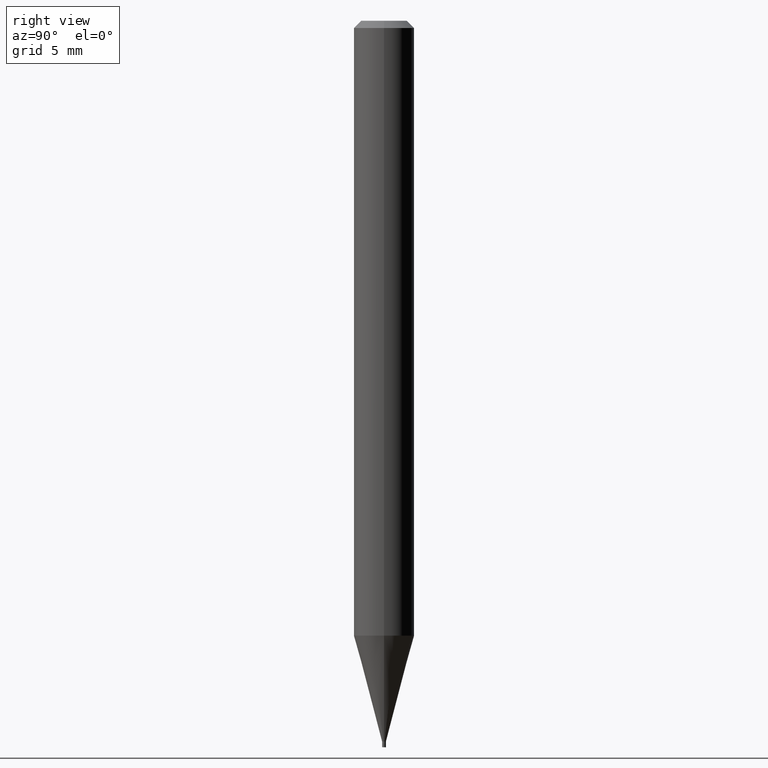
[diagram: clean part render]
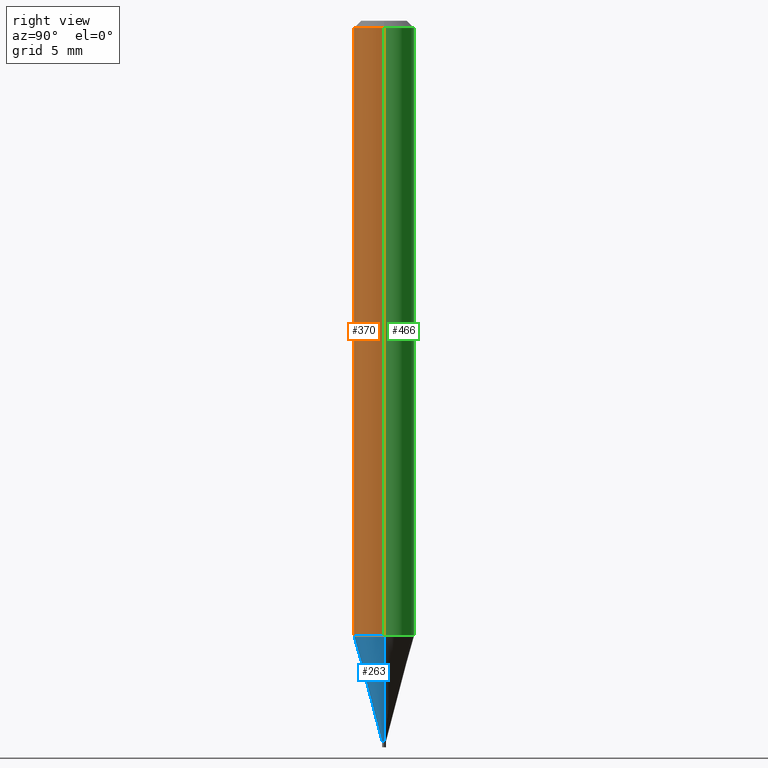
[diagram: same view with three faces highlighted in distinct colors, each labeled with its STEP entity id]
A machine part, right view with three faces highlighted in distinct colors.
Their STEP definitions:

[orange] entity #370 — the highlighted cylindrical surface (edge-blend (fillet) strip) has radius 1.5875 mm, axis along (-0, 0, 1).
#5 = EDGE_CURVE ( 'NONE', #118, #435, #395, .T. ) ;
#9 = AXIS2_PLACEMENT_3D ( 'NONE', #61, #101, #213 ) ;
#10 = DIRECTION ( 'NONE',  ( 1.000000000000000000, -6.982962677686262766E-15, 0.000000000000000000 ) ) ;
#24 = CARTESIAN_POINT ( 'NONE',  ( -0.06250000000000000000, -1.798620233096004515E-15, -0.01499999999999999944 ) ) ;
#45 = CARTESIAN_POINT ( 'NONE',  ( 3.104950674372529160E-29, -4.433046665809486788E-15, -1.269675027757220187 ) ) ;
#48 = ORIENTED_EDGE ( 'NONE', *, *, #324, .T. ) ;
#56 = CARTESIAN_POINT ( 'NONE',  ( -0.06249999999999997918, -3.988957455959424172E-15, -1.269675027757220187 ) ) ;
#61 = CARTESIAN_POINT ( 'NONE',  ( 3.668203209277705088E-31, -5.237222008264718399E-17, -0.01499999999999999944 ) ) ;
#74 = ORIENTED_EDGE ( 'NONE', *, *, #348, .F. ) ;
#97 = LINE ( 'NONE', #175, #146 ) ;
#98 = FACE_OUTER_BOUND ( 'NONE', #183, .T. ) ;
#101 = DIRECTION ( 'NONE',  ( -2.445468806185136597E-29, 3.491481338843145583E-15, 1.000000000000000000 ) ) ;
#118 = VERTEX_POINT ( 'NONE', #56 ) ;
#141 = LINE ( 'NONE', #323, #409 ) ;
#146 = VECTOR ( 'NONE', #388, 39.37007874015748143 ) ;
#164 = ORIENTED_EDGE ( 'NONE', *, *, #356, .F. ) ;
#173 = DIRECTION ( 'NONE',  ( -2.445468806185136597E-29, 3.491481338843145583E-15, 1.000000000000000000 ) ) ;
#175 = CARTESIAN_POINT ( 'NONE',  ( 0.06250000000000000000, -4.364351673553916694E-16, 3.047610484872459871E-30 ) ) ;
#183 = EDGE_LOOP ( 'NONE', ( #164, #190, #48, #74 ) ) ;
#190 = ORIENTED_EDGE ( 'NONE', *, *, #5, .T. ) ;
#213 = DIRECTION ( 'NONE',  ( 1.000000000000000000, -6.982962677686266711E-15, 0.000000000000000000 ) ) ;
#248 = DIRECTION ( 'NONE',  ( 1.000000000000000000, -6.982962677686266711E-15, 4.876176775795935793E-29 ) ) ;
#257 = AXIS2_PLACEMENT_3D ( 'NONE', #45, #334, #10 ) ;
#323 = CARTESIAN_POINT ( 'NONE',  ( -0.06250000000000000000, 4.440892098500626162E-16, -3.074334431409316114E-30 ) ) ;
#324 = EDGE_CURVE ( 'NONE', #435, #412, #97, .T. ) ;
#334 = DIRECTION ( 'NONE',  ( -2.445468806185136597E-29, 3.491481338843145583E-15, 1.000000000000000000 ) ) ;
#348 = EDGE_CURVE ( 'NONE', #366, #412, #432, .T. ) ;
#356 = EDGE_CURVE ( 'NONE', #118, #366, #141, .T. ) ;
#359 = CARTESIAN_POINT ( 'NONE',  ( 0.000000000000000000, 0.000000000000000000, 0.000000000000000000 ) ) ;
#366 = VERTEX_POINT ( 'NONE', #24 ) ;
#370 = ADVANCED_FACE ( 'NONE', ( #98 ), #419, .T. ) ;
#388 = DIRECTION ( 'NONE',  ( -2.445468806185136877E-29, 3.491481338843145188E-15, 1.000000000000000000 ) ) ;
#395 = CIRCLE ( 'NONE', #257, 0.06250000000000000000 ) ;
#398 = CARTESIAN_POINT ( 'NONE',  ( 0.06249999999999997918, -4.869481833164877669E-15, -1.269675027757220187 ) ) ;
#409 = VECTOR ( 'NONE', #463, 39.37007874015748143 ) ;
#412 = VERTEX_POINT ( 'NONE', #461 ) ;
#413 = AXIS2_PLACEMENT_3D ( 'NONE', #359, #173, #248 ) ;
#419 = CYLINDRICAL_SURFACE ( 'NONE', #413, 0.06250000000000000000 ) ;
#432 = CIRCLE ( 'NONE', #9, 0.06250000000000000000 ) ;
#435 = VERTEX_POINT ( 'NONE', #398 ) ;
#461 = CARTESIAN_POINT ( 'NONE',  ( 0.06250000000000000000, -4.888073874380388472E-16, -0.01499999999999999944 ) ) ;
#463 = DIRECTION ( 'NONE',  ( -2.445468806185136877E-29, 3.491481338843145188E-15, 1.000000000000000000 ) ) ;

[blue] entity #263 — the highlighted conical surface has half-angle 15 deg.
#5 = EDGE_CURVE ( 'NONE', #118, #435, #395, .T. ) ;
#10 = DIRECTION ( 'NONE',  ( 1.000000000000000000, -6.982962677686262766E-15, 0.000000000000000000 ) ) ;
#15 = VERTEX_POINT ( 'NONE', #269 ) ;
#28 = CARTESIAN_POINT ( 'NONE',  ( -0.003999999999999648802, -4.577929989363811904E-15, -1.487999999999999989 ) ) ;
#32 = EDGE_CURVE ( 'NONE', #382, #118, #224, .T. ) ;
#35 = ORIENTED_EDGE ( 'NONE', *, *, #32, .F. ) ;
#45 = CARTESIAN_POINT ( 'NONE',  ( 3.104950674372529160E-29, -4.433046665809486788E-15, -1.269675027757220187 ) ) ;
#56 = CARTESIAN_POINT ( 'NONE',  ( -0.06249999999999997918, -3.988957455959424172E-15, -1.269675027757220187 ) ) ;
#64 = CARTESIAN_POINT ( 'NONE',  ( 3.638857583603483825E-29, -5.195324232198600513E-15, -1.487999999999999989 ) ) ;
#68 = AXIS2_PLACEMENT_3D ( 'NONE', #64, #106, #243 ) ;
#89 = CONICAL_SURFACE ( 'NONE', #153, 0.003999999999999648802, 0.2617993877991501295 ) ;
#106 = DIRECTION ( 'NONE',  ( -2.445468806185136597E-29, 3.491481338843145583E-15, 1.000000000000000000 ) ) ;
#118 = VERTEX_POINT ( 'NONE', #56 ) ;
#135 = DIRECTION ( 'NONE',  ( 1.000000000000000000, -6.982962677686217801E-15, 0.000000000000000000 ) ) ;
#137 = CIRCLE ( 'NONE', #68, 0.003999999999999648802 ) ;
#153 = AXIS2_PLACEMENT_3D ( 'NONE', #347, #210, #135 ) ;
#158 = CARTESIAN_POINT ( 'NONE',  ( -0.003999999999999648802, -5.166902522768199636E-15, -1.487999999999999989 ) ) ;
#195 = ORIENTED_EDGE ( 'NONE', *, *, #405, .T. ) ;
#210 = DIRECTION ( 'NONE',  ( -2.445468806185136597E-29, 3.491481338843145583E-15, 1.000000000000000000 ) ) ;
#224 = LINE ( 'NONE', #158, #449 ) ;
#225 = ORIENTED_EDGE ( 'NONE', *, *, #415, .T. ) ;
#243 = DIRECTION ( 'NONE',  ( 1.000000000000000000, -6.982962677686217801E-15, 0.000000000000000000 ) ) ;
#249 = DIRECTION ( 'NONE',  ( 0.2588190451025214611, 1.565188264969621573E-15, 0.9659258262890682012 ) ) ;
#257 = AXIS2_PLACEMENT_3D ( 'NONE', #45, #334, #10 ) ;
#261 = ORIENTED_EDGE ( 'NONE', *, *, #5, .F. ) ;
#263 = ADVANCED_FACE ( 'NONE', ( #274 ), #89, .T. ) ;
#266 = EDGE_LOOP ( 'NONE', ( #35, #195, #225, #261 ) ) ;
#269 = CARTESIAN_POINT ( 'NONE',  ( 0.003999999999999648802, -5.223256082909342993E-15, -1.487999999999999989 ) ) ;
#274 = FACE_OUTER_BOUND ( 'NONE', #266, .T. ) ;
#303 = DIRECTION ( 'NONE',  ( -0.2588190451025214611, 5.211531920934551042E-15, 0.9659258262890682012 ) ) ;
#334 = DIRECTION ( 'NONE',  ( -2.445468806185136597E-29, 3.491481338843145583E-15, 1.000000000000000000 ) ) ;
#347 = CARTESIAN_POINT ( 'NONE',  ( 3.638857583603483825E-29, -5.195324232198600513E-15, -1.487999999999999989 ) ) ;
#382 = VERTEX_POINT ( 'NONE', #28 ) ;
#395 = CIRCLE ( 'NONE', #257, 0.06250000000000000000 ) ;
#396 = VECTOR ( 'NONE', #249, 39.37007874015747433 ) ;
#398 = CARTESIAN_POINT ( 'NONE',  ( 0.06249999999999997918, -4.869481833164877669E-15, -1.269675027757220187 ) ) ;
#405 = EDGE_CURVE ( 'NONE', #382, #15, #137, .T. ) ;
#415 = EDGE_CURVE ( 'NONE', #15, #435, #456, .T. ) ;
#435 = VERTEX_POINT ( 'NONE', #398 ) ;
#449 = VECTOR ( 'NONE', #303, 39.37007874015747433 ) ;
#456 = LINE ( 'NONE', #465, #396 ) ;
#465 = CARTESIAN_POINT ( 'NONE',  ( 0.003999999999999648802, -5.223256082909342993E-15, -1.487999999999999989 ) ) ;

[green] entity #466 — the highlighted cylindrical surface (edge-blend (fillet) strip) has radius 1.5875 mm, axis along (-0, 0, 1).
#3 = CIRCLE ( 'NONE', #250, 0.06250000000000000000 ) ;
#20 = ORIENTED_EDGE ( 'NONE', *, *, #356, .T. ) ;
#24 = CARTESIAN_POINT ( 'NONE',  ( -0.06250000000000000000, -1.798620233096004515E-15, -0.01499999999999999944 ) ) ;
#33 = DIRECTION ( 'NONE',  ( -2.445468806185136597E-29, 3.491481338843145583E-15, 1.000000000000000000 ) ) ;
#44 = ORIENTED_EDGE ( 'NONE', *, *, #380, .T. ) ;
#56 = CARTESIAN_POINT ( 'NONE',  ( -0.06249999999999997918, -3.988957455959424172E-15, -1.269675027757220187 ) ) ;
#81 = ORIENTED_EDGE ( 'NONE', *, *, #448, .F. ) ;
#97 = LINE ( 'NONE', #175, #146 ) ;
#102 = CARTESIAN_POINT ( 'NONE',  ( 0.000000000000000000, 0.000000000000000000, 0.000000000000000000 ) ) ;
#118 = VERTEX_POINT ( 'NONE', #56 ) ;
#132 = DIRECTION ( 'NONE',  ( -2.445468806185136597E-29, 3.491481338843145583E-15, 1.000000000000000000 ) ) ;
#140 = CYLINDRICAL_SURFACE ( 'NONE', #389, 0.06250000000000000000 ) ;
#141 = LINE ( 'NONE', #323, #409 ) ;
#146 = VECTOR ( 'NONE', #388, 39.37007874015748143 ) ;
#171 = DIRECTION ( 'NONE',  ( 1.000000000000000000, -6.982962677686262766E-15, 0.000000000000000000 ) ) ;
#175 = CARTESIAN_POINT ( 'NONE',  ( 0.06250000000000000000, -4.364351673553916694E-16, 3.047610484872459871E-30 ) ) ;
#193 = ORIENTED_EDGE ( 'NONE', *, *, #324, .F. ) ;
#227 = AXIS2_PLACEMENT_3D ( 'NONE', #423, #33, #425 ) ;
#250 = AXIS2_PLACEMENT_3D ( 'NONE', #428, #132, #171 ) ;
#312 = CIRCLE ( 'NONE', #227, 0.06250000000000000000 ) ;
#322 = DIRECTION ( 'NONE',  ( -2.445468806185136597E-29, 3.491481338843145583E-15, 1.000000000000000000 ) ) ;
#323 = CARTESIAN_POINT ( 'NONE',  ( -0.06250000000000000000, 4.440892098500626162E-16, -3.074334431409316114E-30 ) ) ;
#324 = EDGE_CURVE ( 'NONE', #435, #412, #97, .T. ) ;
#352 = FACE_OUTER_BOUND ( 'NONE', #369, .T. ) ;
#356 = EDGE_CURVE ( 'NONE', #118, #366, #141, .T. ) ;
#366 = VERTEX_POINT ( 'NONE', #24 ) ;
#369 = EDGE_LOOP ( 'NONE', ( #44, #20, #81, #193 ) ) ;
#380 = EDGE_CURVE ( 'NONE', #435, #118, #3, .T. ) ;
#388 = DIRECTION ( 'NONE',  ( -2.445468806185136877E-29, 3.491481338843145188E-15, 1.000000000000000000 ) ) ;
#389 = AXIS2_PLACEMENT_3D ( 'NONE', #102, #322, #393 ) ;
#393 = DIRECTION ( 'NONE',  ( 1.000000000000000000, -6.982962677686266711E-15, 4.876176775795935793E-29 ) ) ;
#398 = CARTESIAN_POINT ( 'NONE',  ( 0.06249999999999997918, -4.869481833164877669E-15, -1.269675027757220187 ) ) ;
#409 = VECTOR ( 'NONE', #463, 39.37007874015748143 ) ;
#412 = VERTEX_POINT ( 'NONE', #461 ) ;
#423 = CARTESIAN_POINT ( 'NONE',  ( 3.668203209277705088E-31, -5.237222008264718399E-17, -0.01499999999999999944 ) ) ;
#425 = DIRECTION ( 'NONE',  ( 1.000000000000000000, -6.982962677686266711E-15, 0.000000000000000000 ) ) ;
#428 = CARTESIAN_POINT ( 'NONE',  ( 3.104950674372529160E-29, -4.433046665809486788E-15, -1.269675027757220187 ) ) ;
#435 = VERTEX_POINT ( 'NONE', #398 ) ;
#448 = EDGE_CURVE ( 'NONE', #412, #366, #312, .T. ) ;
#461 = CARTESIAN_POINT ( 'NONE',  ( 0.06250000000000000000, -4.888073874380388472E-16, -0.01499999999999999944 ) ) ;
#463 = DIRECTION ( 'NONE',  ( -2.445468806185136877E-29, 3.491481338843145188E-15, 1.000000000000000000 ) ) ;
#466 = ADVANCED_FACE ( 'NONE', ( #352 ), #140, .T. ) ;